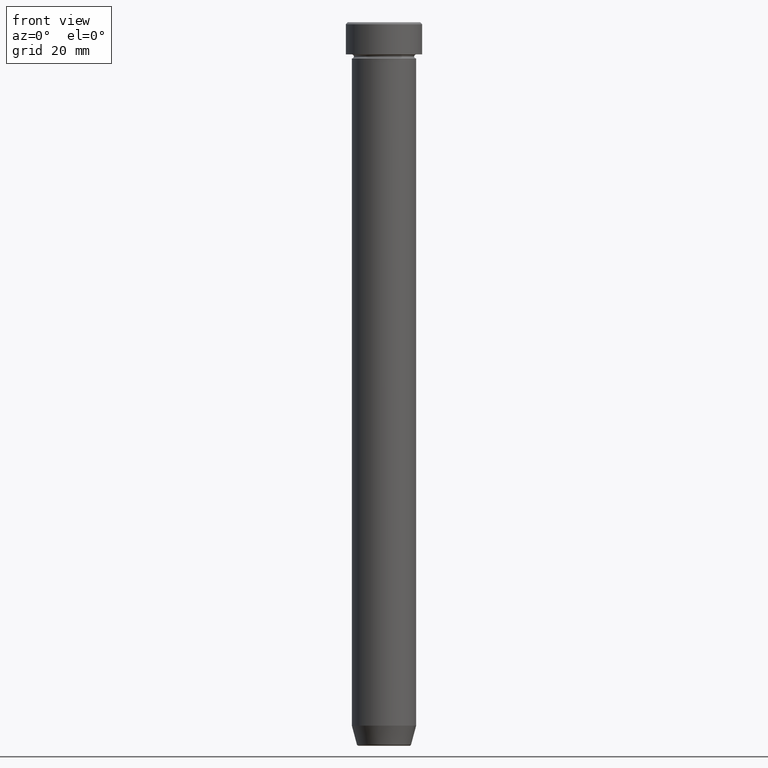
[diagram: clean part render]
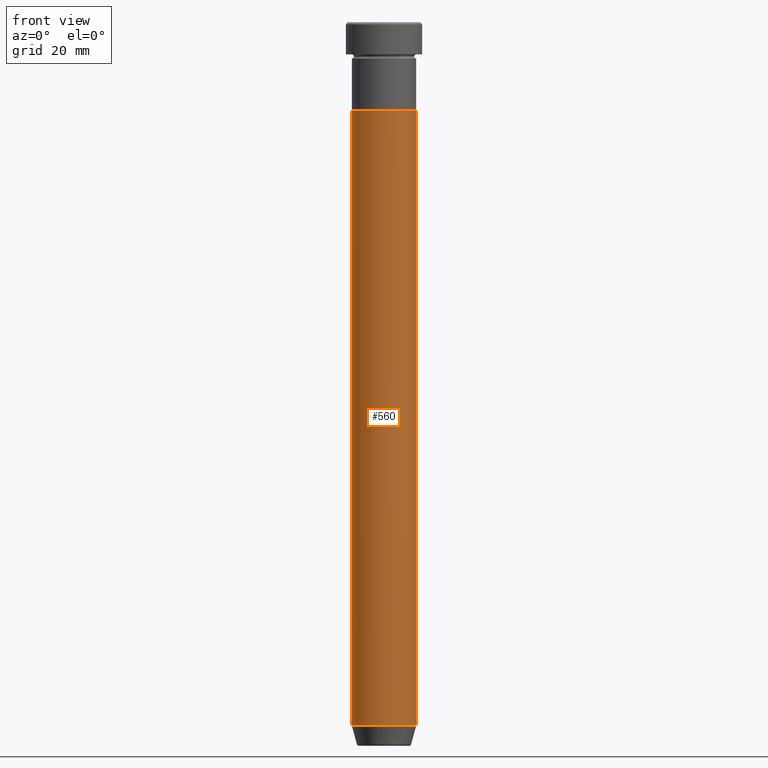
[diagram: same view with one face highlighted and labeled with its STEP entity id]
A machine part, front view. The second image highlights one B-rep face of the part: STEP entity #560.
In plain terms, the highlighted cylindrical surface (edge-blend (fillet) strip) has radius 8 mm, axis along (-0, -0, 1).
Its self-contained STEP definition (entity closure, byte-faithful):
#10 = CIRCLE ( 'NONE', #136, 8.000000000000000000 ) ;
#13 = EDGE_CURVE ( 'NONE', #229, #263, #346, .T. ) ;
#39 = ORIENTED_EDGE ( 'NONE', *, *, #395, .T. ) ;
#84 = VERTEX_POINT ( 'NONE', #289 ) ;
#87 = CARTESIAN_POINT ( 'NONE',  ( 8.000000000000000000, 0.000000000000000000, 0.000000000000000000 ) ) ;
#103 = EDGE_CURVE ( 'NONE', #380, #229, #552, .T. ) ;
#107 = CARTESIAN_POINT ( 'NONE',  ( -8.000000000000000000, 9.797174393178825657E-16, 0.000000000000000000 ) ) ;
#111 = CARTESIAN_POINT ( 'NONE',  ( -8.000000000000000000, 9.797174393178825657E-16, -22.00000000000000000 ) ) ;
#122 = ORIENTED_EDGE ( 'NONE', *, *, #13, .F. ) ;
#128 = CARTESIAN_POINT ( 'NONE',  ( 0.000000000000000000, 0.000000000000000000, -22.00000000000000000 ) ) ;
#136 = AXIS2_PLACEMENT_3D ( 'NONE', #592, #180, #170 ) ;
#149 = AXIS2_PLACEMENT_3D ( 'NONE', #543, #150, #558 ) ;
#150 = DIRECTION ( 'NONE',  ( -0.000000000000000000, -0.000000000000000000, 1.000000000000000000 ) ) ;
#170 = DIRECTION ( 'NONE',  ( 1.000000000000000000, 0.000000000000000000, 0.000000000000000000 ) ) ;
#171 = EDGE_LOOP ( 'NONE', ( #439, #206, #39, #122 ) ) ;
#172 = CARTESIAN_POINT ( 'NONE',  ( -8.000000000000000000, 9.797174393178825657E-16, -175.0000000000000000 ) ) ;
#180 = DIRECTION ( 'NONE',  ( -0.000000000000000000, -0.000000000000000000, 1.000000000000000000 ) ) ;
#206 = ORIENTED_EDGE ( 'NONE', *, *, #382, .T. ) ;
#213 = VECTOR ( 'NONE', #350, 1000.000000000000000 ) ;
#229 = VERTEX_POINT ( 'NONE', #111 ) ;
#240 = DIRECTION ( 'NONE',  ( -0.000000000000000000, -0.000000000000000000, 1.000000000000000000 ) ) ;
#263 = VERTEX_POINT ( 'NONE', #293 ) ;
#289 = CARTESIAN_POINT ( 'NONE',  ( 8.000000000000000000, 0.000000000000000000, -175.0000000000000000 ) ) ;
#293 = CARTESIAN_POINT ( 'NONE',  ( 8.000000000000000000, 0.000000000000000000, -22.00000000000000000 ) ) ;
#342 = LINE ( 'NONE', #87, #213 ) ;
#346 = CIRCLE ( 'NONE', #391, 8.000000000000000000 ) ;
#350 = DIRECTION ( 'NONE',  ( -0.000000000000000000, -0.000000000000000000, 1.000000000000000000 ) ) ;
#373 = VECTOR ( 'NONE', #240, 1000.000000000000000 ) ;
#380 = VERTEX_POINT ( 'NONE', #172 ) ;
#382 = EDGE_CURVE ( 'NONE', #380, #84, #10, .T. ) ;
#391 = AXIS2_PLACEMENT_3D ( 'NONE', #128, #526, #479 ) ;
#395 = EDGE_CURVE ( 'NONE', #84, #263, #342, .T. ) ;
#405 = CYLINDRICAL_SURFACE ( 'NONE', #149, 8.000000000000000000 ) ;
#439 = ORIENTED_EDGE ( 'NONE', *, *, #103, .F. ) ;
#479 = DIRECTION ( 'NONE',  ( 1.000000000000000000, 0.000000000000000000, 0.000000000000000000 ) ) ;
#526 = DIRECTION ( 'NONE',  ( -0.000000000000000000, -0.000000000000000000, 1.000000000000000000 ) ) ;
#543 = CARTESIAN_POINT ( 'NONE',  ( 0.000000000000000000, 0.000000000000000000, 0.000000000000000000 ) ) ;
#552 = LINE ( 'NONE', #107, #373 ) ;
#556 = FACE_OUTER_BOUND ( 'NONE', #171, .T. ) ;
#558 = DIRECTION ( 'NONE',  ( 1.000000000000000000, 0.000000000000000000, 0.000000000000000000 ) ) ;
#560 = ADVANCED_FACE ( 'NONE', ( #556 ), #405, .T. ) ;
#592 = CARTESIAN_POINT ( 'NONE',  ( 0.000000000000000000, 0.000000000000000000, -175.0000000000000000 ) ) ;